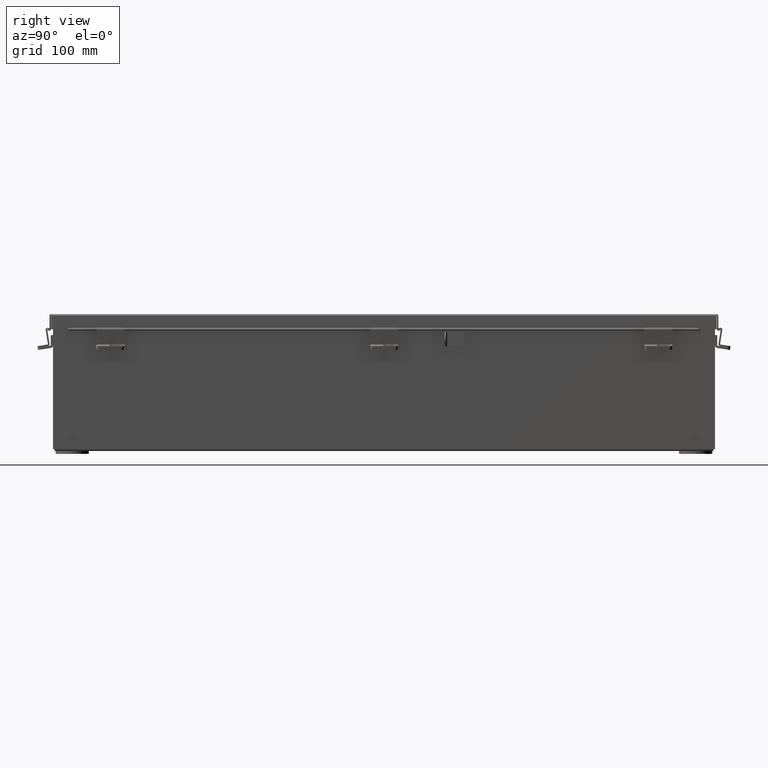
[diagram: clean part render]
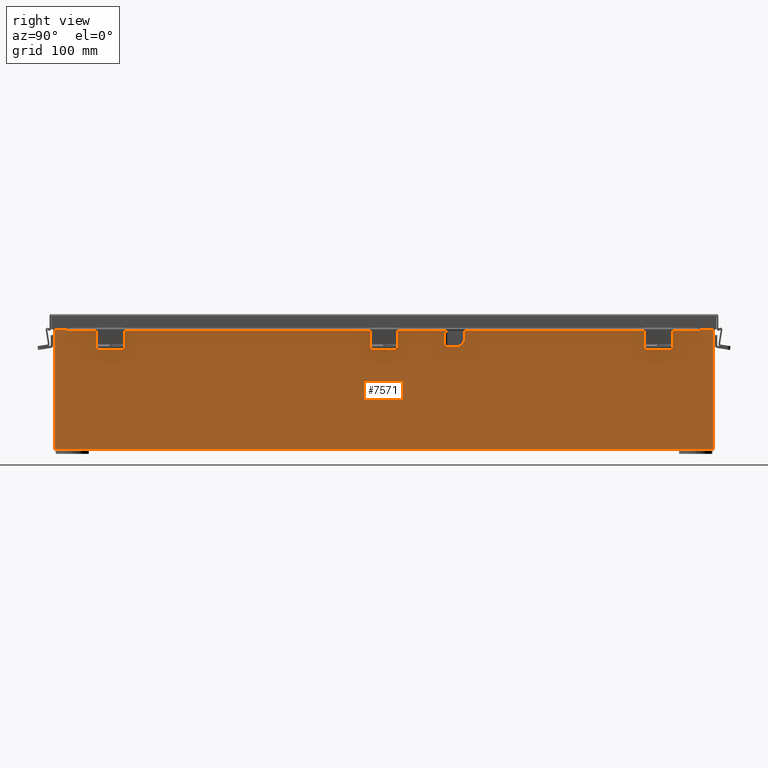
[diagram: same view with one face highlighted and labeled with its STEP entity id]
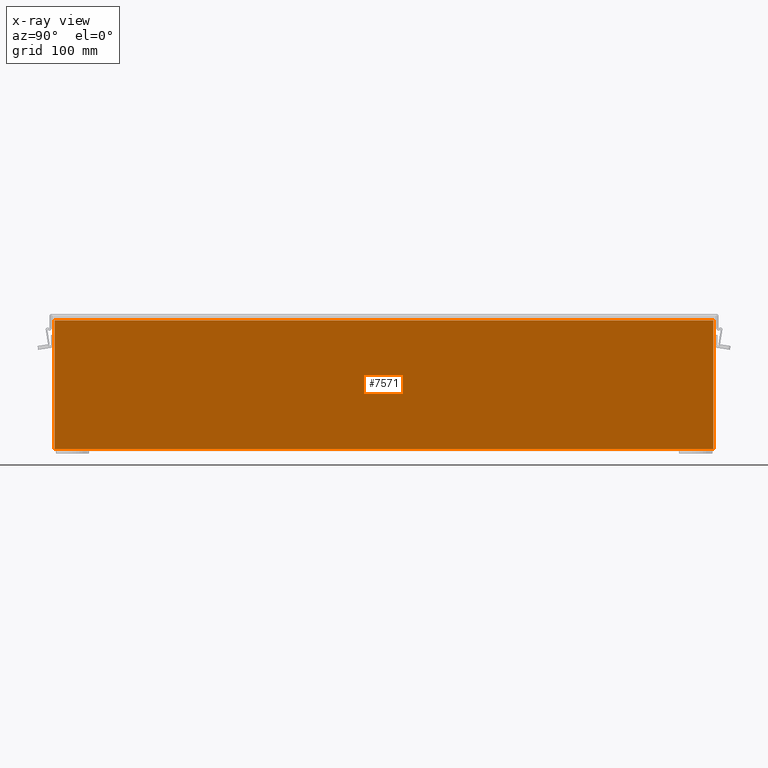
[diagram: x-ray of the same camera — body ghosted, the highlighted face saturated]
A machine part, right view. The second image highlights one B-rep face of the part: STEP entity #7571.
The next image is the same camera in x-ray: the body ghosted, the highlighted face saturated — about 0% of this face is hidden behind the body in this view.
In plain terms, the highlighted planar face has unit normal (-1, 0, 0).
Its self-contained STEP definition (entity closure, byte-faithful):
#302 = EDGE_LOOP ( 'NONE', ( #13782, #3577, #23191, #5524 ) ) ;
#535 = VECTOR ( 'NONE', #11721, 39.37007874015748100 ) ;
#1884 = CARTESIAN_POINT ( 'NONE',  ( 2.999999999999998700, -14.92529999999999800, 0.01300000000000011600 ) ) ;
#1979 = CARTESIAN_POINT ( 'NONE',  ( 3.000000000000018700, -14.92529999999999800, 5.837599999999999200 ) ) ;
#2416 = AXIS2_PLACEMENT_3D ( 'NONE', #5718, #7828, #22013 ) ;
#2482 = VECTOR ( 'NONE', #12291, 39.37007874015748100 ) ;
#3577 = ORIENTED_EDGE ( 'NONE', *, *, #23153, .T. ) ;
#4828 = DIRECTION ( 'NONE',  ( 3.455316574900958600E-015, -3.735477378271307500E-016, 1.000000000000000000 ) ) ;
#5524 = ORIENTED_EDGE ( 'NONE', *, *, #20648, .T. ) ;
#5718 = CARTESIAN_POINT ( 'NONE',  ( 2.999999999999998700, 0.0000000000000000000, -1.062859610035002400E-014 ) ) ;
#6323 = LINE ( 'NONE', #18997, #16497 ) ;
#7029 = VERTEX_POINT ( 'NONE', #1979 ) ;
#7571 = ADVANCED_FACE ( 'NONE', ( #25876 ), #19992, .F. ) ;
#7694 = EDGE_CURVE ( 'NONE', #23089, #25284, #18632, .T. ) ;
#7828 = DIRECTION ( 'NONE',  ( -1.000000000000000000, 0.0000000000000000000, 3.455316574900958600E-015 ) ) ;
#10223 = CARTESIAN_POINT ( 'NONE',  ( 2.999999999999998700, -14.92529999999999800, 0.01299999999999984300 ) ) ;
#11542 = CARTESIAN_POINT ( 'NONE',  ( 2.999999999999998700, 14.92530000000000000, 0.01300000000000039000 ) ) ;
#11721 = DIRECTION ( 'NONE',  ( -3.455316574900958600E-015, 0.0000000000000000000, -1.000000000000000000 ) ) ;
#12291 = DIRECTION ( 'NONE',  ( -6.324428756955009600E-032, -1.000000000000000000, -1.830347124455966700E-017 ) ) ;
#13782 = ORIENTED_EDGE ( 'NONE', *, *, #22594, .T. ) ;
#13826 = LINE ( 'NONE', #17879, #24585 ) ;
#15123 = VERTEX_POINT ( 'NONE', #15512 ) ;
#15512 = CARTESIAN_POINT ( 'NONE',  ( 3.000000000000018700, 14.92529999999999600, 5.837599999999999200 ) ) ;
#16037 = LINE ( 'NONE', #23843, #535 ) ;
#16497 = VECTOR ( 'NONE', #4828, 39.37007874015748100 ) ;
#17879 = CARTESIAN_POINT ( 'NONE',  ( 3.000000000000018700, 14.92529999999999800, 5.837599999999999200 ) ) ;
#18632 = LINE ( 'NONE', #10223, #2482 ) ;
#18997 = CARTESIAN_POINT ( 'NONE',  ( 2.999999999999998700, 14.92530000000000200, -5.053918788278887100E-015 ) ) ;
#19897 = DIRECTION ( 'NONE',  ( -0.0000000000000000000, -1.000000000000000000, -0.0000000000000000000 ) ) ;
#19992 = PLANE ( 'NONE',  #2416 ) ;
#20648 = EDGE_CURVE ( 'NONE', #23089, #15123, #6323, .T. ) ;
#22013 = DIRECTION ( 'NONE',  ( 3.455316574900958600E-015, 0.0000000000000000000, 1.000000000000000000 ) ) ;
#22594 = EDGE_CURVE ( 'NONE', #15123, #7029, #13826, .T. ) ;
#23089 = VERTEX_POINT ( 'NONE', #11542 ) ;
#23153 = EDGE_CURVE ( 'NONE', #7029, #25284, #16037, .T. ) ;
#23191 = ORIENTED_EDGE ( 'NONE', *, *, #7694, .F. ) ;
#23843 = CARTESIAN_POINT ( 'NONE',  ( 2.999999999999998700, -14.92529999999999800, -1.062859610035002400E-014 ) ) ;
#24585 = VECTOR ( 'NONE', #19897, 39.37007874015748100 ) ;
#25284 = VERTEX_POINT ( 'NONE', #1884 ) ;
#25876 = FACE_OUTER_BOUND ( 'NONE', #302, .T. ) ;